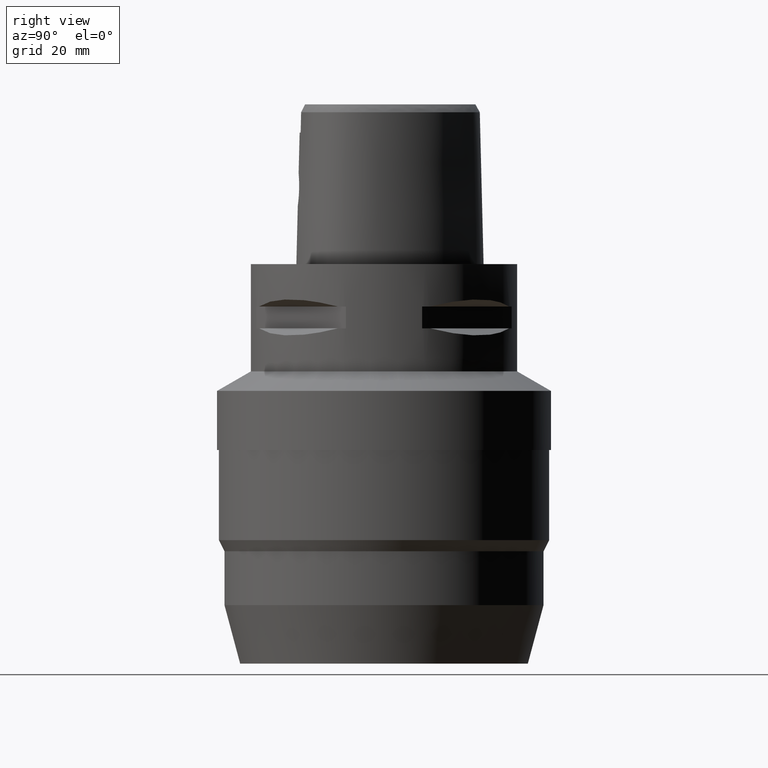
[diagram: clean part render]
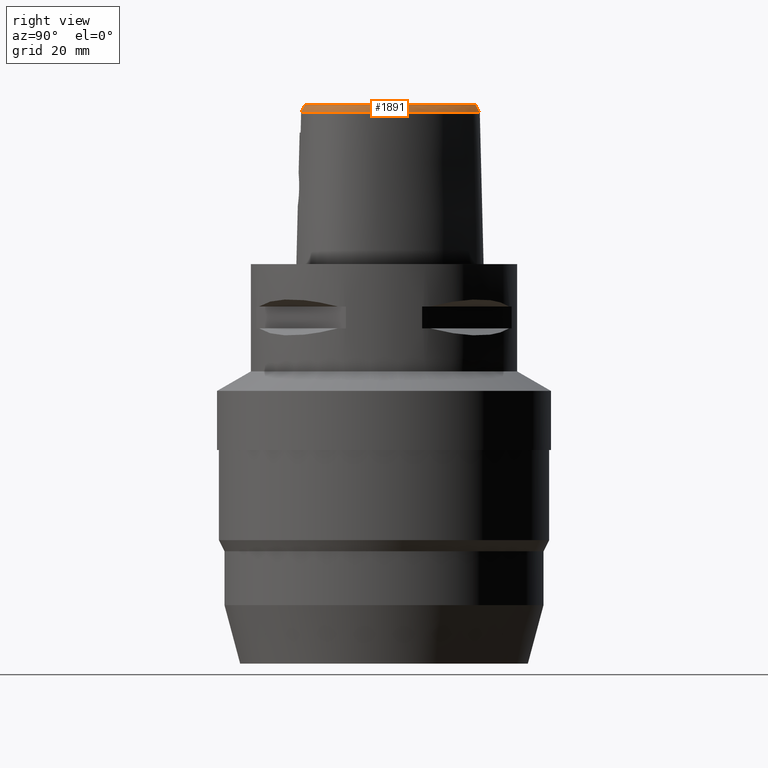
[diagram: same view with one face highlighted and labeled with its STEP entity id]
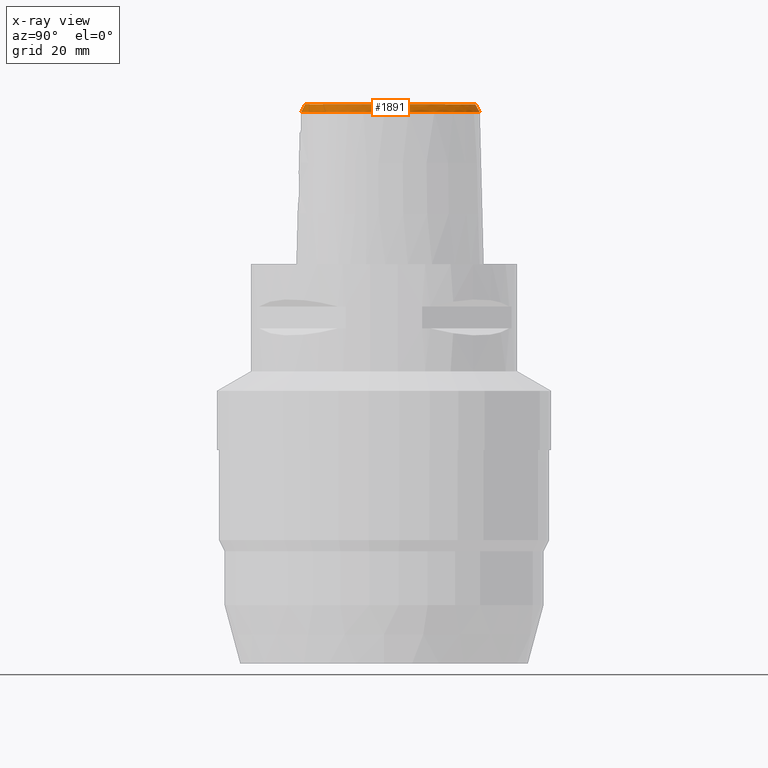
[diagram: x-ray of the same camera — body ghosted, the highlighted face saturated]
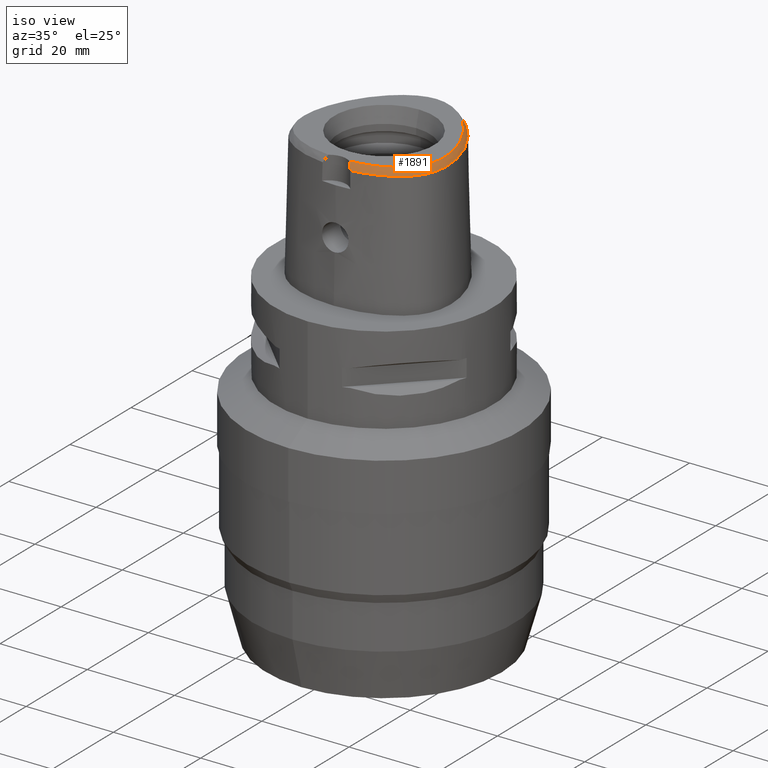
[diagram: same view with one face highlighted and labeled with its STEP entity id]
A machine part, right view. The second image highlights one B-rep face of the part: STEP entity #1891.
The next image is the same camera in x-ray: the body ghosted, the highlighted face saturated — about 0% of this face is hidden behind the body in this view.
A second angle (iso view) of the same face is appended — the face is thin or edge-on in the first view.
In plain terms, the highlighted face is a freeform B-spline surface patch.
Its self-contained STEP definition (entity closure, byte-faithful):
#63=CARTESIAN_POINT('',(-6.301949014276E-11,1.715328888648E1,3.E1));
#68=CARTESIAN_POINT('',(-6.301949014276E-11,1.715328888648E1,3.E1));
#69=CARTESIAN_POINT('',(2.873142035089E-1,1.715328888649E1,3.E1));
#70=CARTESIAN_POINT('',(8.746919657827E-1,1.712226301305E1,3.E1));
#71=CARTESIAN_POINT('',(1.786176331971E0,1.697822066556E1,3.E1));
#72=CARTESIAN_POINT('',(2.751600706407E0,1.672452396767E1,3.E1));
#73=CARTESIAN_POINT('',(3.779782320856E0,1.634288149272E1,3.E1));
#74=CARTESIAN_POINT('',(4.851437146944E0,1.582474836025E1,3.E1));
#75=CARTESIAN_POINT('',(5.938802373847E0,1.517565848561E1,3.E1));
#76=CARTESIAN_POINT('',(7.040149268203E0,1.438926803985E1,3.E1));
#77=CARTESIAN_POINT('',(8.137410272620E0,1.347230187080E1,3.E1));
#78=CARTESIAN_POINT('',(9.292097651722E0,1.235683674748E1,3.E1));
#79=CARTESIAN_POINT('',(1.053562334745E1,1.095646361983E1,3.E1));
#80=CARTESIAN_POINT('',(1.176697428743E1,9.321139445341E0,3.E1));
#81=CARTESIAN_POINT('',(1.288802225904E1,7.557790338475E0,3.E1));
#82=CARTESIAN_POINT('',(1.387102947183E1,5.707675400062E0,3.E1));
#83=CARTESIAN_POINT('',(1.468768424528E1,3.825510281642E0,3.E1));
#84=CARTESIAN_POINT('',(1.529958240176E1,2.032495673019E0,3.E1));
#85=CARTESIAN_POINT('',(1.570751759675E1,4.459207256230E-1,3.E1));
#86=CARTESIAN_POINT('',(1.596532958522E1,-9.823708729088E-1,3.E1));
#87=CARTESIAN_POINT('',(1.610404676738E1,-2.318527386846E0,3.E1));
#88=CARTESIAN_POINT('',(1.613377472202E1,-3.589666929366E0,3.E1));
#89=CARTESIAN_POINT('',(1.605521038243E1,-4.798484052566E0,3.E1));
#90=CARTESIAN_POINT('',(1.587843931760E1,-5.892432576021E0,3.E1));
#91=CARTESIAN_POINT('',(1.562179005851E1,-6.864898975068E0,3.E1));
#92=CARTESIAN_POINT('',(1.529593256305E1,-7.733915568549E0,3.E1));
#93=CARTESIAN_POINT('',(1.490956639415E1,-8.511892095888E0,3.E1));
#94=CARTESIAN_POINT('',(1.444743183692E1,-9.239284295859E0,3.E1));
#95=CARTESIAN_POINT('',(1.388189552721E1,-9.955396098882E0,3.E1));
#96=CARTESIAN_POINT('',(1.319424809225E1,-1.066519496996E1,3.E1));
#97=CARTESIAN_POINT('',(1.236678315648E1,-1.136690534461E1,3.E1));
#98=CARTESIAN_POINT('',(1.137799833327E1,-1.205295270502E1,3.E1));
#99=CARTESIAN_POINT('',(1.028638914781E1,-1.267286229056E1,3.E1));
#100=CARTESIAN_POINT('',(9.081137682096E0,-1.323361067599E1,3.E1));
#101=CARTESIAN_POINT('',(7.746046657244E0,-1.373468431174E1,3.E1));
#102=CARTESIAN_POINT('',(6.228197123954E0,-1.418214316808E1,3.E1));
#103=CARTESIAN_POINT('',(4.425255687096E0,-1.456697664912E1,3.E1));
#104=CARTESIAN_POINT('',(3.103736066912E0,-1.474178412727E1,3.E1));
#105=CARTESIAN_POINT('',(2.406543924165E0,-1.480491841402E1,3.E1));
#126=CARTESIAN_POINT('',(3.168920890823E0,-1.555911073834E1,2.852071374673E1));
#127=CARTESIAN_POINT('',(3.092754885602E0,-1.546022708601E1,2.871177281682E1));
#128=CARTESIAN_POINT('',(2.933486648292E0,-1.527275237607E1,2.907623188493E1));
#129=CARTESIAN_POINT('',(2.681047657588E0,-1.502456524551E1,2.956380184668E1));
#130=CARTESIAN_POINT('',(2.499764416455E0,-1.487513233604E1,2.986017399738E1));
#131=CARTESIAN_POINT('',(2.406543924165E0,-1.480491841402E1,3.E1));
#136=CARTESIAN_POINT('',(-2.940963973554E-11,1.798202997910E1,
2.852071728569E1));
#137=CARTESIAN_POINT('',(3.164817052553E-1,1.798202997911E1,2.852071728569E1));
#138=CARTESIAN_POINT('',(9.457096566206E-1,1.794927562333E1,2.852061277494E1));
#139=CARTESIAN_POINT('',(1.947295129065E0,1.779298889364E1,2.852073989694E1));
#140=CARTESIAN_POINT('',(2.997332695890E0,1.751757331350E1,2.852072675278E1));
#141=CARTESIAN_POINT('',(4.111183563537E0,1.710450716973E1,2.852071403071E1));
#142=CARTESIAN_POINT('',(5.278956209741E0,1.653839489307E1,2.852072798612E1));
#143=CARTESIAN_POINT('',(6.472053410936E0,1.581966770029E1,2.852071729031E1));
#144=CARTESIAN_POINT('',(7.665118772368E0,1.495517448601E1,2.852072072976E1));
#145=CARTESIAN_POINT('',(8.846773977650E0,1.395071621257E1,2.852071234198E1));
#146=CARTESIAN_POINT('',(1.010185700746E1,1.271118183203E1,2.852072036533E1));
#147=CARTESIAN_POINT('',(1.142529858134E1,1.117615564512E1,2.852071219018E1));
#148=CARTESIAN_POINT('',(1.269544021080E1,9.433040653431E0,2.852072884215E1));
#149=CARTESIAN_POINT('',(1.384578495372E1,7.555233500872E0,2.852068867199E1));
#150=CARTESIAN_POINT('',(1.483613197066E1,5.607140900858E0,2.852072656633E1));
#151=CARTESIAN_POINT('',(1.564805139265E1,3.629741795918E0,2.852069908236E1));
#152=CARTESIAN_POINT('',(1.623574211246E1,1.779004336037E0,2.852072204768E1));
#153=CARTESIAN_POINT('',(1.662025874762E1,1.317112473919E-1,2.852072416692E1));
#154=CARTESIAN_POINT('',(1.685236336517E1,-1.367393891467E0,2.852071124047E1));
#155=CARTESIAN_POINT('',(1.695913881813E1,-2.792566397072E0,2.852071748575E1));
#156=CARTESIAN_POINT('',(1.694311084466E1,-4.159686730585E0,2.852072209834E1));
#157=CARTESIAN_POINT('',(1.680944553941E1,-5.419017625721E0,2.852071862719E1));
#158=CARTESIAN_POINT('',(1.657816815264E1,-6.543043538046E0,2.852071904276E1));
#159=CARTESIAN_POINT('',(1.626289067545E1,-7.553391415173E0,2.852071192156E1));
#160=CARTESIAN_POINT('',(1.587459409352E1,-8.460565395447E0,2.852071923812E1));
#161=CARTESIAN_POINT('',(1.541238130850E1,-9.289785644361E0,2.852074921121E1));
#162=CARTESIAN_POINT('',(1.485328397856E1,-1.008373616994E1,2.852069335939E1));
#163=CARTESIAN_POINT('',(1.417296406505E1,-1.086590568531E1,2.852072233800E1));
#164=CARTESIAN_POINT('',(1.335815505457E1,-1.163192522460E1,2.852072124819E1));
#165=CARTESIAN_POINT('',(1.238218982187E1,-1.238459234416E1,2.852071777105E1));
#166=CARTESIAN_POINT('',(1.124222764105E1,-1.310116775137E1,2.852071926744E1));
#167=CARTESIAN_POINT('',(9.989659074117E0,-1.374160495429E1,2.852071181481E1));
#168=CARTESIAN_POINT('',(8.610314567063E0,-1.431109483395E1,2.852073010588E1));
#169=CARTESIAN_POINT('',(7.078283419671E0,-1.481235570773E1,2.852071570079E1));
#170=CARTESIAN_POINT('',(5.253482876355E0,-1.525727358768E1,2.852071174299E1));
#171=CARTESIAN_POINT('',(3.887131653876E0,-1.547540022794E1,2.852069664663E1));
#172=CARTESIAN_POINT('',(3.168920890823E0,-1.555911073834E1,2.852071374673E1));
#228=DIRECTION('',(-1.982170104905E-11,-4.887572537803E-1,8.724198226067E-1));
#229=VECTOR('',#228,1.695608783729E0);
#230=CARTESIAN_POINT('',(-2.940963973554E-11,1.798202997910E1,
2.852071728569E1));
#231=LINE('',#230,#229);
#1460=CARTESIAN_POINT('',(2.406543924164E0,-1.480491841402E1,3.E1));
#1462=VERTEX_POINT('',#1460);
#1464=VERTEX_POINT('',#63);
#1469=VERTEX_POINT('',#126);
#1474=CARTESIAN_POINT('',(-2.940963973554E-11,1.798202997910E1,
2.852071728569E1));
#1475=VERTEX_POINT('',#1474);
#1658=CARTESIAN_POINT('',(1.921721003045E0,-1.476342981454E1,3.014401247082E1));
#1659=CARTESIAN_POINT('',(1.945499231045E0,-1.509261667703E1,2.955489119463E1));
#1660=CARTESIAN_POINT('',(1.969277459045E0,-1.542180353951E1,2.896576991844E1));
#1661=CARTESIAN_POINT('',(1.993055687046E0,-1.575099040200E1,2.837664864225E1));
#1662=CARTESIAN_POINT('',(2.081549467626E0,-1.475188264483E1,3.014401246899E1));
#1663=CARTESIAN_POINT('',(2.107324013460E0,-1.508092530698E1,2.955489120030E1));
#1664=CARTESIAN_POINT('',(2.133098559294E0,-1.540996796914E1,2.896576993162E1));
#1665=CARTESIAN_POINT('',(2.158873105127E0,-1.573901063129E1,2.837664866293E1));
#1666=CARTESIAN_POINT('',(2.373422013150E0,-1.472811937180E1,3.014401246989E1));
#1667=CARTESIAN_POINT('',(2.402856804542E0,-1.505686417635E1,2.955489119754E1));
#1668=CARTESIAN_POINT('',(2.432291595934E0,-1.538560898090E1,2.896576992520E1));
#1669=CARTESIAN_POINT('',(2.461726387326E0,-1.571435378545E1,2.837664865286E1));
#1670=CARTESIAN_POINT('',(3.120986421439E0,-1.465468347868E1,3.014401249490E1));
#1671=CARTESIAN_POINT('',(3.159884244402E0,-1.498249882587E1,2.955489112021E1));
#1672=CARTESIAN_POINT('',(3.198782067365E0,-1.531031417306E1,2.896576974551E1));
#1673=CARTESIAN_POINT('',(3.237679890328E0,-1.563812952025E1,2.837664837081E1));
#1674=CARTESIAN_POINT('',(4.147015364528E0,-1.451796440199E1,3.014401260098E1));
#1675=CARTESIAN_POINT('',(4.199199686393E0,-1.484401749156E1,2.955489079236E1));
#1676=CARTESIAN_POINT('',(4.251384008257E0,-1.517007058112E1,2.896576898374E1));
#1677=CARTESIAN_POINT('',(4.303568330122E0,-1.549612367069E1,2.837664717512E1));
#1678=CARTESIAN_POINT('',(5.429573089632E0,-1.427628477733E1,3.014401245056E1));
#1679=CARTESIAN_POINT('',(5.499285341062E0,-1.459904934678E1,2.955489125728E1));
#1680=CARTESIAN_POINT('',(5.568997592493E0,-1.492181391623E1,2.896577006400E1));
#1681=CARTESIAN_POINT('',(5.638709843923E0,-1.524457848568E1,2.837664887073E1));
#1682=CARTESIAN_POINT('',(6.636798217407E0,-1.397989685849E1,3.014401219984E1));
#1683=CARTESIAN_POINT('',(6.724072719957E0,-1.429836725914E1,2.955489203216E1));
#1684=CARTESIAN_POINT('',(6.811347222507E0,-1.461683765980E1,2.896577186448E1));
#1685=CARTESIAN_POINT('',(6.898621725057E0,-1.493530806046E1,2.837665169681E1));
#1686=CARTESIAN_POINT('',(7.758171966575E0,-1.363770477091E1,3.014401226490E1));
#1687=CARTESIAN_POINT('',(7.863076460216E0,-1.395081791241E1,2.955489183110E1));
#1688=CARTESIAN_POINT('',(7.967980953858E0,-1.426393105390E1,2.896577139730E1));
#1689=CARTESIAN_POINT('',(8.072885447499E0,-1.457704419539E1,2.837665096349E1));
#1690=CARTESIAN_POINT('',(8.786282856944E0,-1.325930693243E1,3.014401255049E1));
#1691=CARTESIAN_POINT('',(8.908852959883E0,-1.356594481981E1,2.955489094840E1));
#1692=CARTESIAN_POINT('',(9.031423062822E0,-1.387258270718E1,2.896576934630E1));
#1693=CARTESIAN_POINT('',(9.153993165761E0,-1.417922059455E1,2.837664774421E1));
#1694=CARTESIAN_POINT('',(9.721384281432E0,-1.285242868221E1,3.014401257314E1));
#1695=CARTESIAN_POINT('',(9.861633744670E0,-1.315140334897E1,2.955489087839E1));
#1696=CARTESIAN_POINT('',(1.000188320791E1,-1.345037801574E1,2.896576918365E1));
#1697=CARTESIAN_POINT('',(1.014213267115E1,-1.374935268250E1,2.837664748890E1));
#1698=CARTESIAN_POINT('',(1.056642581685E1,-1.242378506945E1,3.014401255757E1));
#1699=CARTESIAN_POINT('',(1.072424620598E1,-1.271387903951E1,2.955489092651E1));
#1700=CARTESIAN_POINT('',(1.088206659512E1,-1.300397300957E1,2.896576929544E1));
#1701=CARTESIAN_POINT('',(1.103988698426E1,-1.329406697963E1,2.837664766438E1));
#1702=CARTESIAN_POINT('',(1.132481752888E1,-1.197959251936E1,3.014401249515E1));
#1703=CARTESIAN_POINT('',(1.150006826765E1,-1.225951274046E1,2.955489111946E1));
#1704=CARTESIAN_POINT('',(1.167531900642E1,-1.253943296156E1,2.896576974378E1));
#1705=CARTESIAN_POINT('',(1.185056974519E1,-1.281935318265E1,2.837664836810E1));
#1706=CARTESIAN_POINT('',(1.200225241117E1,-1.152440334525E1,3.014401247904E1));
#1707=CARTESIAN_POINT('',(1.219464016728E1,-1.179284588188E1,2.955489116922E1));
#1708=CARTESIAN_POINT('',(1.238702792339E1,-1.206128841851E1,2.896576985939E1));
#1709=CARTESIAN_POINT('',(1.257941567950E1,-1.232973095515E1,2.837664854956E1));
#1710=CARTESIAN_POINT('',(1.260401806999E1,-1.106234856347E1,3.014401256382E1));
#1711=CARTESIAN_POINT('',(1.281316777942E1,-1.131796064441E1,2.955489090721E1));
#1712=CARTESIAN_POINT('',(1.302231748886E1,-1.157357272534E1,2.896576925061E1));
#1713=CARTESIAN_POINT('',(1.323146719829E1,-1.182918480628E1,2.837664759401E1));
#1714=CARTESIAN_POINT('',(1.313666703854E1,-1.059577122983E1,3.014401256310E1));
#1715=CARTESIAN_POINT('',(1.336204998851E1,-1.083720394828E1,2.955489090944E1));
#1716=CARTESIAN_POINT('',(1.358743293847E1,-1.107863666672E1,2.896576925578E1));
#1717=CARTESIAN_POINT('',(1.381281588844E1,-1.132006938517E1,2.837664760213E1));
#1718=CARTESIAN_POINT('',(1.360669494477E1,-1.012592407957E1,3.014401255677E1));
#1719=CARTESIAN_POINT('',(1.384763690873E1,-1.035184492935E1,2.955489092898E1));
#1720=CARTESIAN_POINT('',(1.408857887269E1,-1.057776577914E1,2.896576930119E1));
#1721=CARTESIAN_POINT('',(1.432952083664E1,-1.080368662892E1,2.837664767339E1));
#1722=CARTESIAN_POINT('',(1.401988193104E1,-9.653474496595E0,3.014401250402E1));
#1723=CARTESIAN_POINT('',(1.427556730706E1,-9.862576570138E0,2.955489109201E1));
#1724=CARTESIAN_POINT('',(1.453125268307E1,-1.007167864368E1,2.896576968E1));
#1725=CARTESIAN_POINT('',(1.478693805909E1,-1.028078071722E1,2.837664826798E1));
#1726=CARTESIAN_POINT('',(1.438180802247E1,-9.177768453413E0,3.014401256174E1));
#1727=CARTESIAN_POINT('',(1.465124088045E1,-9.368839791226E0,2.955489091362E1));
#1728=CARTESIAN_POINT('',(1.492067373843E1,-9.559911129038E0,2.896576926550E1));
#1729=CARTESIAN_POINT('',(1.519010659641E1,-9.750982466851E0,2.837664761738E1));
#1730=CARTESIAN_POINT('',(1.469555392622E1,-8.700541176466E0,3.014401253896E1));
#1731=CARTESIAN_POINT('',(1.497762352693E1,-8.872431955053E0,2.955489098403E1));
#1732=CARTESIAN_POINT('',(1.525969312763E1,-9.044322733641E0,2.896576942909E1));
#1733=CARTESIAN_POINT('',(1.554176272834E1,-9.216213512229E0,2.837664787416E1));
#1734=CARTESIAN_POINT('',(1.497084007275E1,-8.210683606103E0,3.014401258251E1));
#1735=CARTESIAN_POINT('',(1.526435290902E1,-8.362204267143E0,2.955489084943E1));
#1736=CARTESIAN_POINT('',(1.555786574530E1,-8.513724928184E0,2.896576911635E1));
#1737=CARTESIAN_POINT('',(1.585137858158E1,-8.665245589225E0,2.837664738327E1));
#1738=CARTESIAN_POINT('',(1.521909823638E1,-7.686931711057E0,3.014401251735E1));
#1739=CARTESIAN_POINT('',(1.552236928568E1,-7.817802799903E0,2.955489105083E1));
#1740=CARTESIAN_POINT('',(1.582564033497E1,-7.948673888750E0,2.896576958432E1));
#1741=CARTESIAN_POINT('',(1.612891138427E1,-8.079544977596E0,2.837664811780E1));
#1742=CARTESIAN_POINT('',(1.544087392620E1,-7.121784358331E0,3.014401252710E1));
#1743=CARTESIAN_POINT('',(1.575237555183E1,-7.231620549095E0,2.955489102069E1));
#1744=CARTESIAN_POINT('',(1.606387717747E1,-7.341456739860E0,2.896576951429E1));
#1745=CARTESIAN_POINT('',(1.637537880310E1,-7.451292930624E0,2.837664800789E1));
#1746=CARTESIAN_POINT('',(1.563350505535E1,-6.512367411623E0,3.014401255891E1));
#1747=CARTESIAN_POINT('',(1.595168282334E1,-6.600990755223E0,2.955489092239E1));
#1748=CARTESIAN_POINT('',(1.626986059132E1,-6.689614098823E0,2.896576928586E1));
#1749=CARTESIAN_POINT('',(1.658803835930E1,-6.778237442423E0,2.837664764934E1));
#1750=CARTESIAN_POINT('',(1.579445312520E1,-5.853314702595E0,3.014401256808E1));
#1751=CARTESIAN_POINT('',(1.611778225419E1,-5.920720688391E0,2.955489089404E1));
#1752=CARTESIAN_POINT('',(1.644111138318E1,-5.988126674187E0,2.896576922E1));
#1753=CARTESIAN_POINT('',(1.676444051217E1,-6.055532659983E0,2.837664754597E1));
#1754=CARTESIAN_POINT('',(1.591988976612E1,-5.140150608577E0,3.014401254311E1));
#1755=CARTESIAN_POINT('',(1.624689771113E1,-5.186461898635E0,2.955489097119E1));
#1756=CARTESIAN_POINT('',(1.657390565615E1,-5.232773188692E0,2.896576939927E1));
#1757=CARTESIAN_POINT('',(1.690091360117E1,-5.279084478750E0,2.837664782735E1));
#1758=CARTESIAN_POINT('',(1.600520257613E1,-4.367691439478E0,3.014401246191E1));
#1759=CARTESIAN_POINT('',(1.633447824154E1,-4.393181780880E0,2.955489122218E1));
#1760=CARTESIAN_POINT('',(1.666375390696E1,-4.418672122282E0,2.896576998245E1));
#1761=CARTESIAN_POINT('',(1.699302957237E1,-4.444162463684E0,2.837664874272E1));
#1762=CARTESIAN_POINT('',(1.604474840179E1,-3.532230192612E0,3.014401252931E1));
#1763=CARTESIAN_POINT('',(1.637496150058E1,-3.537268514406E0,2.955489101388E1));
#1764=CARTESIAN_POINT('',(1.670517459938E1,-3.542306836201E0,2.896576949845E1));
#1765=CARTESIAN_POINT('',(1.703538769817E1,-3.547345157995E0,2.837664798302E1));
#1766=CARTESIAN_POINT('',(1.603208478116E1,-2.631156600818E0,3.014401255293E1));
#1767=CARTESIAN_POINT('',(1.636198659712E1,-2.616174407734E0,2.955489094084E1));
#1768=CARTESIAN_POINT('',(1.669188841308E1,-2.601192214650E0,2.896576932875E1));
#1769=CARTESIAN_POINT('',(1.702179022903E1,-2.586210021567E0,2.837664771667E1));
#1770=CARTESIAN_POINT('',(1.596029938392E1,-1.662537968460E0,3.014401259956E1));
#1771=CARTESIAN_POINT('',(1.628872943548E1,-1.628076200622E0,2.955489079675E1));
#1772=CARTESIAN_POINT('',(1.661715948703E1,-1.593614432785E0,2.896576899395E1));
#1773=CARTESIAN_POINT('',(1.694558953859E1,-1.559152664948E0,2.837664719115E1));
#1774=CARTESIAN_POINT('',(1.582219114701E1,-6.269787979204E-1,
3.014401245501E1));
#1775=CARTESIAN_POINT('',(1.614806638956E1,-5.735580418464E-1,
2.955489124350E1));
#1776=CARTESIAN_POINT('',(1.647394163210E1,-5.201372857723E-1,
2.896577003200E1));
#1777=CARTESIAN_POINT('',(1.679981687464E1,-4.667165296982E-1,
2.837664882049E1));
#1778=CARTESIAN_POINT('',(1.561049767621E1,4.743985849479E-1,3.014401219871E1));
#1779=CARTESIAN_POINT('',(1.593282414361E1,5.461536111565E-1,2.955489203567E1));
#1780=CARTESIAN_POINT('',(1.625515061100E1,6.179086373650E-1,2.896577187262E1));
#1781=CARTESIAN_POINT('',(1.657747707840E1,6.896636635735E-1,2.837665170958E1));
#1782=CARTESIAN_POINT('',(1.531898198114E1,1.635308648749E0,3.014401223878E1));
#1783=CARTESIAN_POINT('',(1.563683061804E1,1.724814016272E0,2.955489191180E1));
#1784=CARTESIAN_POINT('',(1.595467925495E1,1.814319383795E0,2.896577158481E1));
#1785=CARTESIAN_POINT('',(1.627252789185E1,1.903824751318E0,2.837665125782E1));
#1786=CARTESIAN_POINT('',(1.494393861333E1,2.842994096648E0,3.014401255014E1));
#1787=CARTESIAN_POINT('',(1.525643837529E1,2.949669095512E0,2.955489094948E1));
#1788=CARTESIAN_POINT('',(1.556893813726E1,3.056344094376E0,2.896576934882E1));
#1789=CARTESIAN_POINT('',(1.588143789922E1,3.163019093241E0,2.837664774816E1));
#1790=CARTESIAN_POINT('',(1.448340440530E1,4.083999212807E0,3.014401256626E1));
#1791=CARTESIAN_POINT('',(1.478971793116E1,4.207307838065E0,2.955489089966E1));
#1792=CARTESIAN_POINT('',(1.509603145701E1,4.330616463322E0,2.896576923305E1));
#1793=CARTESIAN_POINT('',(1.540234498286E1,4.453925088579E0,2.837664756644E1));
#1794=CARTESIAN_POINT('',(1.393771835872E1,5.343311903108E0,3.014401246211E1));
#1795=CARTESIAN_POINT('',(1.423705470091E1,5.482698057054E0,2.955489122153E1));
#1796=CARTESIAN_POINT('',(1.453639104310E1,5.622084211E0,2.896576998095E1));
#1797=CARTESIAN_POINT('',(1.483572738529E1,5.761470364945E0,2.837664874038E1));
#1798=CARTESIAN_POINT('',(1.331247210784E1,6.599034745829E0,3.014401251801E1));
#1799=CARTESIAN_POINT('',(1.360404931635E1,6.753995891492E0,2.955489104879E1));
#1800=CARTESIAN_POINT('',(1.389562652486E1,6.908957037155E0,2.896576957957E1));
#1801=CARTESIAN_POINT('',(1.418720373337E1,7.063918182818E0,2.837664811035E1));
#1802=CARTESIAN_POINT('',(1.261672317990E1,7.828928652698E0,3.014401254965E1));
#1803=CARTESIAN_POINT('',(1.289973334247E1,7.999032582549E0,2.955489095101E1));
#1804=CARTESIAN_POINT('',(1.318274350505E1,8.169136512400E0,2.896576935237E1));
#1805=CARTESIAN_POINT('',(1.346575366763E1,8.339240442251E0,2.837664775373E1));
#1806=CARTESIAN_POINT('',(1.185977514332E1,9.016053227252E0,3.014401243812E1));
#1807=CARTESIAN_POINT('',(1.213344322273E1,9.200813063214E0,2.955489129571E1));
#1808=CARTESIAN_POINT('',(1.240711130214E1,9.385572899175E0,2.896577015330E1));
#1809=CARTESIAN_POINT('',(1.268077938155E1,9.570332735136E0,2.837664901089E1));
#1810=CARTESIAN_POINT('',(1.105426876928E1,1.014293576824E1,3.014401248470E1));
#1811=CARTESIAN_POINT('',(1.131777804234E1,1.034192061209E1,2.955489115173E1));
#1812=CARTESIAN_POINT('',(1.158128731540E1,1.054090545594E1,2.896576981877E1));
#1813=CARTESIAN_POINT('',(1.184479658846E1,1.073989029980E1,2.837664848580E1));
#1814=CARTESIAN_POINT('',(1.021719525833E1,1.119094859140E1,3.014401259656E1));
#1815=CARTESIAN_POINT('',(1.046969608522E1,1.140373476900E1,2.955489080601E1));
#1816=CARTESIAN_POINT('',(1.072219691211E1,1.161652094659E1,2.896576901546E1));
#1817=CARTESIAN_POINT('',(1.097469773900E1,1.182930712419E1,2.837664722491E1));
#1818=CARTESIAN_POINT('',(9.362056598923E0,1.215045962082E1,3.014401239068E1));
#1819=CARTESIAN_POINT('',(9.602657167912E0,1.237662151383E1,2.955489144235E1));
#1820=CARTESIAN_POINT('',(9.843257736902E0,1.260278340684E1,2.896577049403E1));
#1821=CARTESIAN_POINT('',(1.008385830589E1,1.282894529985E1,2.837664954570E1));
#1822=CARTESIAN_POINT('',(8.501434573093E0,1.301570963937E1,3.014401232015E1));
#1823=CARTESIAN_POINT('',(8.729220108050E0,1.325478157188E1,2.955489166034E1));
#1824=CARTESIAN_POINT('',(8.957005643006E0,1.349385350440E1,2.896577100053E1));
#1825=CARTESIAN_POINT('',(9.184791177963E0,1.373292543691E1,2.837665034073E1));
#1826=CARTESIAN_POINT('',(7.648683992612E0,1.378236806332E1,3.014401250186E1));
#1827=CARTESIAN_POINT('',(7.862691907314E0,1.403385821642E1,2.955489109870E1));
#1828=CARTESIAN_POINT('',(8.076699822016E0,1.428534836952E1,2.896576969554E1));
#1829=CARTESIAN_POINT('',(8.290707736717E0,1.453683852261E1,2.837664829238E1));
#1830=CARTESIAN_POINT('',(6.814529761578E0,1.445059794166E1,3.014401260561E1));
#1831=CARTESIAN_POINT('',(7.013739224967E0,1.471397547104E1,2.955489077803E1));
#1832=CARTESIAN_POINT('',(7.212948688355E0,1.497735300042E1,2.896576895044E1));
#1833=CARTESIAN_POINT('',(7.412158151744E0,1.524073052980E1,2.837664712286E1));
#1834=CARTESIAN_POINT('',(6.003181549633E0,1.502643695516E1,3.014401220903E1));
#1835=CARTESIAN_POINT('',(6.186587261958E0,1.530106380427E1,2.955489200377E1));
#1836=CARTESIAN_POINT('',(6.369992974284E0,1.557569065338E1,2.896577179851E1));
#1837=CARTESIAN_POINT('',(6.553398686610E0,1.585031750248E1,2.837665159325E1));
#1838=CARTESIAN_POINT('',(5.217927225662E0,1.551632802634E1,3.014401198318E1));
#1839=CARTESIAN_POINT('',(5.384513008035E0,1.580148213967E1,2.955489270184E1));
#1840=CARTESIAN_POINT('',(5.551098790408E0,1.608663625301E1,2.896577342049E1));
#1841=CARTESIAN_POINT('',(5.717684572781E0,1.637179036635E1,2.837665413915E1));
#1842=CARTESIAN_POINT('',(4.463191404830E0,1.592561487445E1,3.014401209572E1));
#1843=CARTESIAN_POINT('',(4.611935372686E0,1.622047957215E1,2.955489235398E1));
#1844=CARTESIAN_POINT('',(4.760679340543E0,1.651534426986E1,2.896577261225E1));
#1845=CARTESIAN_POINT('',(4.909423308400E0,1.681020896756E1,2.837665287051E1));
#1846=CARTESIAN_POINT('',(3.741149260362E0,1.626085842926E1,3.014401246603E1));
#1847=CARTESIAN_POINT('',(3.871057839082E0,1.656450408330E1,2.955489120946E1));
#1848=CARTESIAN_POINT('',(4.000966417802E0,1.686814973733E1,2.896576995290E1));
#1849=CARTESIAN_POINT('',(4.130874996522E0,1.717179539137E1,2.837664869633E1));
#1850=CARTESIAN_POINT('',(3.051356405128E0,1.652920568043E1,3.014401264080E1));
#1851=CARTESIAN_POINT('',(3.161435962408E0,1.684059927445E1,2.955489066926E1));
#1852=CARTESIAN_POINT('',(3.271515519689E0,1.715199286848E1,2.896576869773E1));
#1853=CARTESIAN_POINT('',(3.381595076969E0,1.746338646250E1,2.837664672619E1));
#1854=CARTESIAN_POINT('',(2.390956556717E0,1.673786136134E1,3.014401256737E1));
#1855=CARTESIAN_POINT('',(2.480358470175E0,1.705581796288E1,2.955489089625E1));
#1856=CARTESIAN_POINT('',(2.569760383633E0,1.737377456443E1,2.896576922513E1));
#1857=CARTESIAN_POINT('',(2.659162297091E0,1.769173116597E1,2.837664755400E1));
#1858=CARTESIAN_POINT('',(1.757518954484E0,1.689268274622E1,3.014401252149E1));
#1859=CARTESIAN_POINT('',(1.825460019486E0,1.721591518625E1,2.955489103803E1));
#1860=CARTESIAN_POINT('',(1.893401084489E0,1.753914762628E1,2.896576955457E1));
#1861=CARTESIAN_POINT('',(1.961342149491E0,1.786238006631E1,2.837664807111E1));
#1862=CARTESIAN_POINT('',(1.150286225250E0,1.699846787247E1,3.014401257531E1));
#1863=CARTESIAN_POINT('',(1.196086454502E0,1.732557965885E1,2.955489087169E1));
#1864=CARTESIAN_POINT('',(1.241886683754E0,1.765269144523E1,2.896576916807E1));
#1865=CARTESIAN_POINT('',(1.287686913005E0,1.797980323161E1,2.837664746445E1));
#1866=CARTESIAN_POINT('',(5.635345065439E-1,1.705951326454E1,3.014401256981E1));
#1867=CARTESIAN_POINT('',(5.866771341242E-1,1.738901355196E1,2.955489088871E1));
#1868=CARTESIAN_POINT('',(6.098197617046E-1,1.771851383938E1,2.896576920761E1));
#1869=CARTESIAN_POINT('',(6.329623892850E-1,1.804801412680E1,2.837664752652E1));
#1870=CARTESIAN_POINT('',(3.831640126405E-2,1.707789565726E1,3.014401252621E1));
#1871=CARTESIAN_POINT('',(3.976737339445E-2,1.740815994519E1,2.955489102344E1));
#1872=CARTESIAN_POINT('',(4.121834552484E-2,1.773842423311E1,2.896576952067E1));
#1873=CARTESIAN_POINT('',(4.266931765523E-2,1.806868852103E1,2.837664801790E1));
#1874=CARTESIAN_POINT('',(-3.073472298988E-1,1.706833916480E1,
3.014401254887E1));
#1875=CARTESIAN_POINT('',(-3.197426288883E-1,1.739820627020E1,
2.955489095339E1));
#1876=CARTESIAN_POINT('',(-3.321380278778E-1,1.772807337561E1,
2.896576935792E1));
#1877=CARTESIAN_POINT('',(-3.445334268673E-1,1.805794048101E1,
2.837664776244E1));
#1878=CARTESIAN_POINT('',(-4.667248342930E-1,1.705998624676E1,
3.014401258090E1));
#1879=CARTESIAN_POINT('',(-4.852173991426E-1,1.738949314843E1,
2.955489085440E1));
#1880=CARTESIAN_POINT('',(-5.037099639921E-1,1.771900005010E1,
2.896576912790E1));
#1881=CARTESIAN_POINT('',(-5.222025288417E-1,1.804850695178E1,
2.837664740140E1));
#1882=B_SPLINE_SURFACE_WITH_KNOTS('',3,3,((#1658,#1659,#1660,#1661),(#1662,
#1663,#1664,#1665),(#1666,#1667,#1668,#1669),(#1670,#1671,#1672,#1673),(#1674,
#1675,#1676,#1677),(#1678,#1679,#1680,#1681),(#1682,#1683,#1684,#1685),(#1686,
#1687,#1688,#1689),(#1690,#1691,#1692,#1693),(#1694,#1695,#1696,#1697),(#1698,
#1699,#1700,#1701),(#1702,#1703,#1704,#1705),(#1706,#1707,#1708,#1709),(#1710,
#1711,#1712,#1713),(#1714,#1715,#1716,#1717),(#1718,#1719,#1720,#1721),(#1722,
#1723,#1724,#1725),(#1726,#1727,#1728,#1729),(#1730,#1731,#1732,#1733),(#1734,
#1735,#1736,#1737),(#1738,#1739,#1740,#1741),(#1742,#1743,#1744,#1745),(#1746,
#1747,#1748,#1749),(#1750,#1751,#1752,#1753),(#1754,#1755,#1756,#1757),(#1758,
#1759,#1760,#1761),(#1762,#1763,#1764,#1765),(#1766,#1767,#1768,#1769),(#1770,
#1771,#1772,#1773),(#1774,#1775,#1776,#1777),(#1778,#1779,#1780,#1781),(#1782,
#1783,#1784,#1785),(#1786,#1787,#1788,#1789),(#1790,#1791,#1792,#1793),(#1794,
#1795,#1796,#1797),(#1798,#1799,#1800,#1801),(#1802,#1803,#1804,#1805),(#1806,
#1807,#1808,#1809),(#1810,#1811,#1812,#1813),(#1814,#1815,#1816,#1817),(#1818,
#1819,#1820,#1821),(#1822,#1823,#1824,#1825),(#1826,#1827,#1828,#1829),(#1830,
#1831,#1832,#1833),(#1834,#1835,#1836,#1837),(#1838,#1839,#1840,#1841),(#1842,
#1843,#1844,#1845),(#1846,#1847,#1848,#1849),(#1850,#1851,#1852,#1853),(#1854,
#1855,#1856,#1857),(#1858,#1859,#1860,#1861),(#1862,#1863,#1864,#1865),(#1866,
#1867,#1868,#1869),(#1870,#1871,#1872,#1873),(#1874,#1875,#1876,#1877),(#1878,
#1879,#1880,#1881)),.UNSPECIFIED.,.F.,.F.,.F.,(4,1,1,1,1,1,1,1,1,1,1,1,1,1,1,1,
1,1,1,1,1,1,1,1,1,1,1,1,1,1,1,1,1,1,1,1,1,1,1,1,1,1,1,1,1,1,1,1,1,1,1,1,1,4),(4,
4),(-6.850724150829E-3,0.E0,5.706470806014E-3,2.559234138984E-2,
4.547821197368E-2,6.536408255751E-2,8.524995314132E-2,1.051358237252E-1,
1.250216943090E-1,1.449075648928E-1,1.647934354767E-1,1.846793060605E-1,
2.045651766443E-1,2.244510472281E-1,2.443369178120E-1,2.642227883958E-1,
2.841086589796E-1,3.039945295635E-1,3.238804001472E-1,3.437662707311E-1,
3.636521413150E-1,3.835380118988E-1,4.034238824826E-1,4.233097530664E-1,
4.431956236503E-1,4.630814942341E-1,4.829673648179E-1,5.028532354018E-1,
5.227391059856E-1,5.426249765694E-1,5.625108471533E-1,5.823967177370E-1,
6.022825883209E-1,6.221684589048E-1,6.420543294886E-1,6.619402000724E-1,
6.818260706562E-1,7.017119412401E-1,7.215978118239E-1,7.414836824077E-1,
7.613695529916E-1,7.812554235753E-1,8.011412941592E-1,8.210271647431E-1,
8.409130353268E-1,8.607989059107E-1,8.806847764945E-1,9.005706470784E-1,
9.204565176622E-1,9.403423882460E-1,9.602282588299E-1,9.801141294136E-1,1.E0,
1.016057694065E0),(-7.437730362618E-2,1.074408777768E0),.UNSPECIFIED.);
#1883=ORIENTED_EDGE('',*,*,#1645,.T.);
#1884=ORIENTED_EDGE('',*,*,#1628,.F.);
#1886=ORIENTED_EDGE('',*,*,#1885,.F.);
#1888=ORIENTED_EDGE('',*,*,#1887,.T.);
#1889=EDGE_LOOP('',(#1883,#1884,#1886,#1888));
#1890=FACE_OUTER_BOUND('',#1889,.F.);
#106=B_SPLINE_CURVE_WITH_KNOTS('',3,(#68,#69,#70,#71,#72,#73,#74,#75,#76,#77,
#78,#79,#80,#81,#82,#83,#84,#85,#86,#87,#88,#89,#90,#91,#92,#93,#94,#95,#96,#97,
#98,#99,#100,#101,#102,#103,#104,#105),.UNSPECIFIED.,.F.,.F.,(4,1,1,1,1,1,1,1,1,
1,1,1,1,1,1,1,1,1,1,1,1,1,1,1,1,1,1,1,1,1,1,1,1,1,1,4),(0.E0,2.857142857143E-2,
5.714285714286E-2,8.571428571429E-2,1.142857142857E-1,1.428571428571E-1,
1.714285714286E-1,2.E-1,2.285714285714E-1,2.571428571429E-1,2.857142857143E-1,
3.142857142857E-1,3.428571428571E-1,3.714285714286E-1,4.E-1,4.285714285714E-1,
4.571428571429E-1,4.857142857143E-1,5.142857142857E-1,5.428571428571E-1,
5.714285714286E-1,6.E-1,6.285714285714E-1,6.571428571429E-1,6.857142857143E-1,
7.142857142857E-1,7.428571428571E-1,7.714285714286E-1,8.E-1,8.285714285714E-1,
8.571428571429E-1,8.857142857143E-1,9.142857142857E-1,9.428571428571E-1,
9.714285714286E-1,1.E0),.UNSPECIFIED.);
#132=B_SPLINE_CURVE_WITH_KNOTS('',3,(#126,#127,#128,#129,#130,#131),
.UNSPECIFIED.,.F.,.F.,(4,1,1,4),(0.E0,3.333333333333E-1,6.666666666667E-1,1.E0),
.UNSPECIFIED.);
#173=B_SPLINE_CURVE_WITH_KNOTS('',3,(#136,#137,#138,#139,#140,#141,#142,#143,
#144,#145,#146,#147,#148,#149,#150,#151,#152,#153,#154,#155,#156,#157,#158,#159,
#160,#161,#162,#163,#164,#165,#166,#167,#168,#169,#170,#171,#172),.UNSPECIFIED.,
.F.,.F.,(4,1,1,1,1,1,1,1,1,1,1,1,1,1,1,1,1,1,1,1,1,1,1,1,1,1,1,1,1,1,1,1,1,1,4),
(0.E0,2.941176470588E-2,5.882352941176E-2,8.823529411765E-2,1.176470588235E-1,
1.470588235294E-1,1.764705882353E-1,2.058823529412E-1,2.352941176471E-1,
2.647058823529E-1,2.941176470588E-1,3.235294117647E-1,3.529411764706E-1,
3.823529411765E-1,4.117647058824E-1,4.411764705882E-1,4.705882352941E-1,5.E-1,
5.294117647059E-1,5.588235294118E-1,5.882352941176E-1,6.176470588235E-1,
6.470588235294E-1,6.764705882353E-1,7.058823529412E-1,7.352941176471E-1,
7.647058823529E-1,7.941176470588E-1,8.235294117647E-1,8.529411764706E-1,
8.823529411765E-1,9.117647058824E-1,9.411764705882E-1,9.705882352941E-1,1.E0),
.UNSPECIFIED.);
#1628=EDGE_CURVE('',#1464,#1462,#106,.T.);
#1645=EDGE_CURVE('',#1469,#1462,#132,.T.);
#1885=EDGE_CURVE('',#1475,#1464,#231,.T.);
#1887=EDGE_CURVE('',#1475,#1469,#173,.T.);
#1891=ADVANCED_FACE('',(#1890),#1882,.F.);